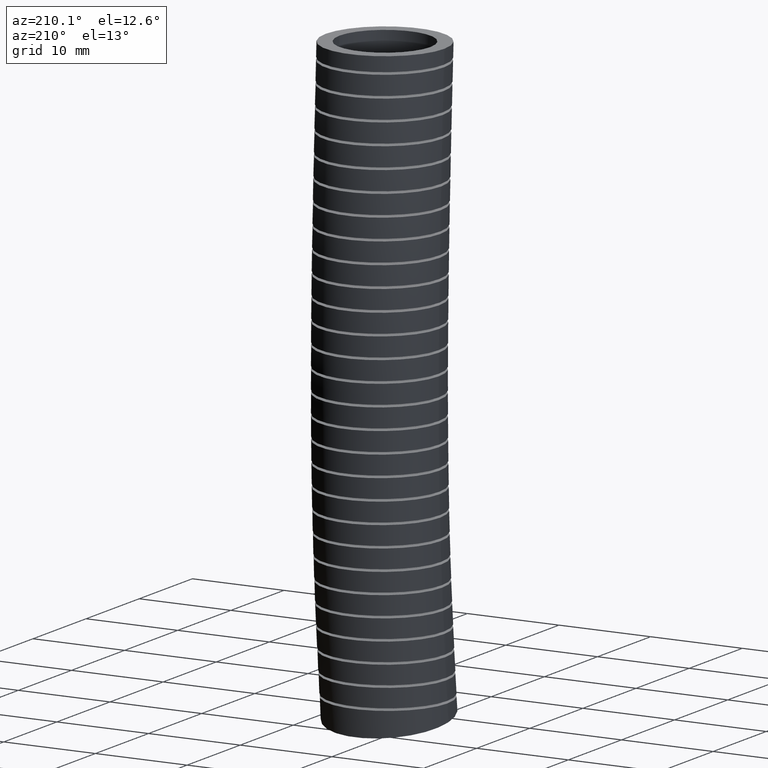
[diagram: clean part render]
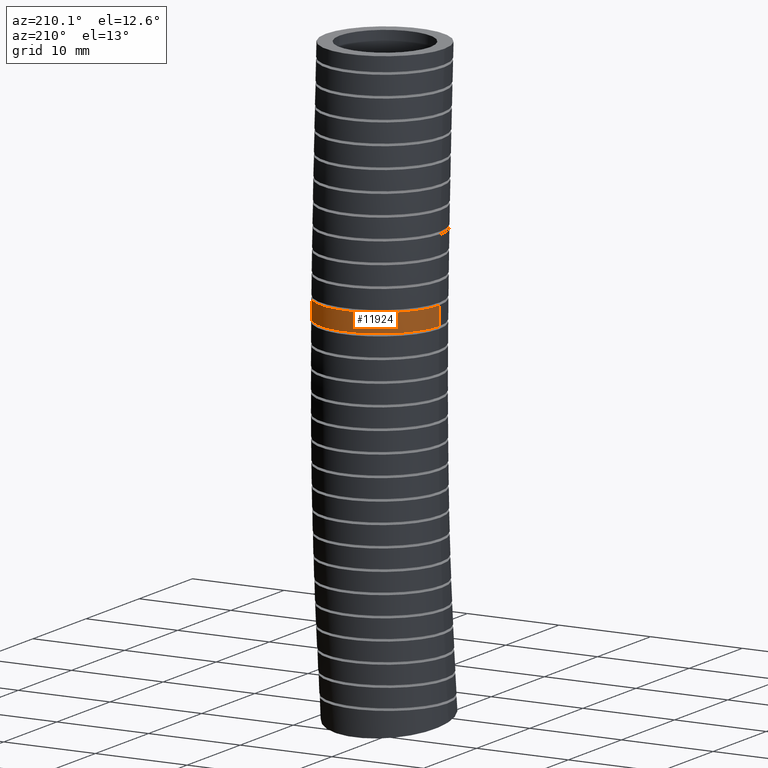
[diagram: same view with one face highlighted and labeled with its STEP entity id]
A machine part, auxiliary view. The second image highlights one B-rep face of the part: STEP entity #11924.
In plain terms, the highlighted face is a freeform B-spline surface patch.
Its self-contained STEP definition (entity closure, byte-faithful):
#581 = CARTESIAN_POINT ( 'NONE',  ( -0.2550000000000000600, 0.03926762583941977000, -1.049293649254424700 ) ) ;
#1707 = B_SPLINE_CURVE_WITH_KNOTS ( 'NONE', 3,
 ( #1717, #1716, #1715, #1714 ),
 .UNSPECIFIED., .F., .F.,
 ( 4, 4 ),
 ( 0.3764236242492631200, 0.4075087206594382700 ),
 .UNSPECIFIED. ) ;
#1714 = CARTESIAN_POINT ( 'NONE',  ( -0.2550000000000000600, 0.03926762583941977000, -1.049293649254424700 ) ) ;
#1715 = CARTESIAN_POINT ( 'NONE',  ( -0.2550000000000000600, 0.03882351107221197100, -1.022634815391523500 ) ) ;
#1716 = CARTESIAN_POINT ( 'NONE',  ( -0.2550000000000000600, 0.03831596796586075200, -0.9959735225869345000 ) ) ;
#1717 = CARTESIAN_POINT ( 'NONE',  ( -0.2550000000000000600, 0.03774983488562666500, -0.9693099584107282000 ) ) ;
#2138 = CARTESIAN_POINT ( 'NONE',  ( 0.2550000000000000600, 0.03926762583302620400, -1.049293649062532900 ) ) ;
#2139 = CARTESIAN_POINT ( 'NONE',  ( 0.2550000000000000600, 0.03882351106871016100, -1.022634815199586500 ) ) ;
#2140 = CARTESIAN_POINT ( 'NONE',  ( 0.2550000000000000600, 0.03831596796206653000, -0.9959735223950068100 ) ) ;
#2141 = CARTESIAN_POINT ( 'NONE',  ( 0.2550000000000000600, 0.03774983487748052200, -0.9693099582188967600 ) ) ;
#2197 = B_SPLINE_CURVE_WITH_KNOTS ( 'NONE', 3,
 ( #2141, #2140, #2139, #2138 ),
 .UNSPECIFIED., .F., .F.,
 ( 4, 4 ),
 ( 0.3764236241746821100, 0.4075087205848334500 ),
 .UNSPECIFIED. ) ;
#2201 = CARTESIAN_POINT ( 'NONE',  ( -0.2550000000000000600, 0.03774983488562666500, -0.9693099584107282000 ) ) ;
#2606 = CARTESIAN_POINT ( 'NONE',  ( 0.2550000000000000600, 0.03926762583302620400, -1.049293649062532900 ) ) ;
#2625 = CARTESIAN_POINT ( 'NONE',  ( 0.2550000000000000600, 0.03774983487748052200, -0.9693099582188967600 ) ) ;
#5761 = FACE_OUTER_BOUND ( 'NONE', #11925, .T. ) ;
#5813 = CARTESIAN_POINT ( 'NONE',  ( -0.2550000000000001200, -0.4555031947619411200, -1.130488866548372800 ) ) ;
#5814 = CARTESIAN_POINT ( 'NONE',  ( -0.2550000000000000600, -0.4871836107831824000, -0.4733061666967772200 ) ) ;
#5815 = CARTESIAN_POINT ( 'NONE',  ( -0.2550000000000000600, -0.5100000000000000100, 0.0000000000000000000 ) ) ;
#5816 = CARTESIAN_POINT ( 'NONE',  ( 0.2549999999999999500, -0.5345687628602172600, -2.495768177001302000 ) ) ;
#5817 = CARTESIAN_POINT ( 'NONE',  ( 0.2549999999999998900, -0.5167458791807605400, -2.314072652159792300 ) ) ;
#5818 = CARTESIAN_POINT ( 'NONE',  ( 0.2550000000000000000, -0.4814916653277938100, -1.954673297706683400 ) ) ;
#5819 = CARTESIAN_POINT ( 'NONE',  ( 0.2550000000000000000, -0.4555031947619411200, -1.130488866548372800 ) ) ;
#5820 = CARTESIAN_POINT ( 'NONE',  ( 0.2550000000000000000, -0.4871836107831824000, -0.4733061666967772200 ) ) ;
#5821 = CARTESIAN_POINT ( 'NONE',  ( 0.2550000000000000000, -0.5100000000000000100, 0.0000000000000000000 ) ) ;
#5822 = CARTESIAN_POINT ( 'NONE',  ( 0.2550000000000000000, -0.03000000000000002700, -2.569999999999999800 ) ) ;
#5823 = CARTESIAN_POINT ( 'NONE',  ( 0.2550000000000000000, -0.01126751581493338000, -2.380080086044865000 ) ) ;
#5824 = CARTESIAN_POINT ( 'NONE',  ( 0.2550000000000000000, 0.02578591590436005500, -2.004412636156899000 ) ) ;
#5825 = CARTESIAN_POINT ( 'NONE',  ( 0.2550000000000001700, 0.05488873695197821200, -1.148486533150796300 ) ) ;
#5826 = CARTESIAN_POINT ( 'NONE',  ( 0.2550000000000000000, 0.02298048079048191000, -0.4808413197099051800 ) ) ;
#5827 = CARTESIAN_POINT ( 'NONE',  ( 0.2550000000000000000, 0.0000000000000000000, 0.0000000000000000000 ) ) ;
#5835 =( BOUNDED_SURFACE ( )  B_SPLINE_SURFACE ( 3, 3, ( 
 ( #5827, #5826, #5825, #5824, #5823, #5822 ),
 ( #5821, #5820, #5819, #5818, #5817, #5816 ),
 ( #5815, #5814, #5813, #5875, #5874, #5873 ),
 ( #5872, #5871, #5870, #5869, #5868, #5867 ),
 ( #5866, #5865, #5864, #5863, #5862, #5861 ),
 ( #5860, #5859, #5858, #5857, #5856, #5855 ),
 ( #5854, #5853, #5852, #5851, #5850, #5849 ) ),
 .UNSPECIFIED., .F., .F., .T. ) 
 B_SPLINE_SURFACE_WITH_KNOTS ( ( 4, 3, 4 ),
 ( 4, 1, 1, 4 ),
 ( 0.0000000000000000000, 0.5000000000000000000, 1.000000000000000000 ),
 ( 0.0000000000000000000, 0.5599999999999998300, 0.7775565539011162200, 1.000000000000000000 ),
 .UNSPECIFIED. ) 
 GEOMETRIC_REPRESENTATION_ITEM ( )  RATIONAL_B_SPLINE_SURFACE ( (
 ( 1.000000000000000000, 1.000000000000000000, 0.9999999999999998900, 1.000000000000000000, 1.000000000000000000, 1.000000000000000000),
 ( 0.3333333333333333100, 0.3333333333333333100, 0.3333333333333332600, 0.3333333333333332600, 0.3333333333333333700, 0.3333333333333333100),
 ( 0.3333333333333333100, 0.3333333333333333100, 0.3333333333333332600, 0.3333333333333332600, 0.3333333333333333700, 0.3333333333333333100),
 ( 1.000000000000000000, 1.000000000000000000, 0.9999999999999998900, 1.000000000000000000, 1.000000000000000000, 1.000000000000000000),
 ( 0.3333333333333333100, 0.3333333333333333100, 0.3333333333333332600, 0.3333333333333332600, 0.3333333333333333700, 0.3333333333333333100),
 ( 0.3333333333333333100, 0.3333333333333333100, 0.3333333333333332600, 0.3333333333333332600, 0.3333333333333333700, 0.3333333333333333100),
 ( 1.000000000000000000, 1.000000000000000000, 0.9999999999999998900, 1.000000000000000000, 1.000000000000000000, 1.000000000000000000) ) ) 
 REPRESENTATION_ITEM ( '' )  SURFACE ( )  );
#5849 = CARTESIAN_POINT ( 'NONE',  ( 0.2550000000000000000, -0.03000000000000002700, -2.569999999999999800 ) ) ;
#5850 = CARTESIAN_POINT ( 'NONE',  ( 0.2550000000000000000, -0.01126751581493338000, -2.380080086044865000 ) ) ;
#5851 = CARTESIAN_POINT ( 'NONE',  ( 0.2550000000000000000, 0.02578591590436005500, -2.004412636156899000 ) ) ;
#5852 = CARTESIAN_POINT ( 'NONE',  ( 0.2550000000000001700, 0.05488873695197821200, -1.148486533150796300 ) ) ;
#5853 = CARTESIAN_POINT ( 'NONE',  ( 0.2550000000000000000, 0.02298048079048191000, -0.4808413197099051800 ) ) ;
#5854 = CARTESIAN_POINT ( 'NONE',  ( 0.2550000000000000000, 0.0000000000000000000, 0.0000000000000000000 ) ) ;
#5855 = CARTESIAN_POINT ( 'NONE',  ( 0.2549999999999999500, 0.4745687628602173200, -2.644231822998695900 ) ) ;
#5856 = CARTESIAN_POINT ( 'NONE',  ( 0.2549999999999998900, 0.4942108475508936700, -2.446087519929936800 ) ) ;
#5857 = CARTESIAN_POINT ( 'NONE',  ( 0.2550000000000000000, 0.5330634971365140200, -2.054151974607116000 ) ) ;
#5858 = CARTESIAN_POINT ( 'NONE',  ( 0.2550000000000000000, 0.5652806686658972100, -1.166484199753219600 ) ) ;
#5859 = CARTESIAN_POINT ( 'NONE',  ( 0.2550000000000000000, 0.5331445723641462500, -0.4883764727230331400 ) ) ;
#5860 = CARTESIAN_POINT ( 'NONE',  ( 0.2550000000000000000, 0.5100000000000000100, 0.0000000000000000000 ) ) ;
#5861 = CARTESIAN_POINT ( 'NONE',  ( -0.2549999999999998900, 0.4745687628602173200, -2.644231822998695900 ) ) ;
#5862 = CARTESIAN_POINT ( 'NONE',  ( -0.2549999999999998400, 0.4942108475508936700, -2.446087519929936800 ) ) ;
#5863 = CARTESIAN_POINT ( 'NONE',  ( -0.2550000000000000000, 0.5330634971365140200, -2.054151974607116000 ) ) ;
#5864 = CARTESIAN_POINT ( 'NONE',  ( -0.2550000000000000000, 0.5652806686658972100, -1.166484199753219600 ) ) ;
#5865 = CARTESIAN_POINT ( 'NONE',  ( -0.2549999999999999500, 0.5331445723641462500, -0.4883764727230331400 ) ) ;
#5866 = CARTESIAN_POINT ( 'NONE',  ( -0.2549999999999999500, 0.5100000000000000100, 0.0000000000000000000 ) ) ;
#5867 = CARTESIAN_POINT ( 'NONE',  ( -0.2550000000000000000, -0.02999999999999999500, -2.569999999999999800 ) ) ;
#5868 = CARTESIAN_POINT ( 'NONE',  ( -0.2550000000000000000, -0.01126751581493335000, -2.380080086044865000 ) ) ;
#5869 = CARTESIAN_POINT ( 'NONE',  ( -0.2550000000000000000, 0.02578591590436009000, -2.004412636156899000 ) ) ;
#5870 = CARTESIAN_POINT ( 'NONE',  ( -0.2550000000000001700, 0.05488873695197826100, -1.148486533150796300 ) ) ;
#5871 = CARTESIAN_POINT ( 'NONE',  ( -0.2550000000000000000, 0.02298048079048194500, -0.4808413197099051800 ) ) ;
#5872 = CARTESIAN_POINT ( 'NONE',  ( -0.2550000000000000000, 3.122849337825751200E-017, 0.0000000000000000000 ) ) ;
#5873 = CARTESIAN_POINT ( 'NONE',  ( -0.2550000000000000000, -0.5345687628602172600, -2.495768177001302000 ) ) ;
#5874 = CARTESIAN_POINT ( 'NONE',  ( -0.2549999999999999500, -0.5167458791807605400, -2.314072652159792300 ) ) ;
#5875 = CARTESIAN_POINT ( 'NONE',  ( -0.2550000000000001200, -0.4814916653277938100, -1.954673297706683400 ) ) ;
#6311 = CARTESIAN_POINT ( 'NONE',  ( 0.06620776055007979200, 0.2843590518157090300, -0.9693099584107279800 ) ) ;
#6313 = CARTESIAN_POINT ( 'NONE',  ( 0.03328236818505082200, 0.2909022532945075300, -0.9693099584107277600 ) ) ;
#6314 = CARTESIAN_POINT ( 'NONE',  ( 0.01659924059801073600, 0.2925256306142783900, -0.9693099584107282000 ) ) ;
#6474 = CARTESIAN_POINT ( 'NONE',  ( -0.008300720400596354000, 0.2925255590617870700, -0.9693099584107283100 ) ) ;
#6475 = CARTESIAN_POINT ( 'NONE',  ( -0.01660376403412220900, 0.2921216348556079400, -0.9693099584107282000 ) ) ;
#6476 = CARTESIAN_POINT ( 'NONE',  ( -0.03321606695690942900, 0.2904924563240123300, -0.9693099584107279800 ) ) ;
#6477 = CARTESIAN_POINT ( 'NONE',  ( -0.04157124660922612700, 0.2892563628148605600, -0.9693099584107274200 ) ) ;
#6478 = CARTESIAN_POINT ( 'NONE',  ( -0.06621107937086796700, 0.2843556970021723900, -0.9693099584107274200 ) ) ;
#6479 = CARTESIAN_POINT ( 'NONE',  ( -0.08210435783835320900, 0.2795297361192583500, -0.9693099584107275300 ) ) ;
#6480 = CARTESIAN_POINT ( 'NONE',  ( -0.1128461321974232600, 0.2668237531997344500, -0.9693099584107276500 ) ) ;
#6481 = CARTESIAN_POINT ( 'NONE',  ( -0.1278205628397526300, 0.2588335469741477300, -0.9693099584107283100 ) ) ;
#6482 = CARTESIAN_POINT ( 'NONE',  ( -0.1555171364381456900, 0.2403436631721438700, -0.9693099584107283100 ) ) ;
#6483 = CARTESIAN_POINT ( 'NONE',  ( -0.1683635781719956000, 0.2298255718887070600, -0.9693099584107283100 ) ) ;
#6484 = CARTESIAN_POINT ( 'NONE',  ( -0.1861121136132605500, 0.2121153794735100300, -0.9693099584107285300 ) ) ;
#6485 = CARTESIAN_POINT ( 'NONE',  ( -0.1917946010244301100, 0.2058561483603526000, -0.9693099584107275300 ) ) ;
#6486 = CARTESIAN_POINT ( 'NONE',  ( -0.2024095622808599300, 0.1929356376844771300, -0.9693099584107276500 ) ) ;
#6487 = CARTESIAN_POINT ( 'NONE',  ( -0.2073682608193868900, 0.1862533060295559200, -0.9693099584107275300 ) ) ;
#6488 = CARTESIAN_POINT ( 'NONE',  ( -0.2212196581418298900, 0.1655538657997183400, -0.9693099584107276500 ) ) ;
#6489 = CARTESIAN_POINT ( 'NONE',  ( -0.2291084258354364200, 0.1508650650741551200, -0.9693099584107280900 ) ) ;
#6490 = CARTESIAN_POINT ( 'NONE',  ( -0.2420053572328226500, 0.1197857827972058600, -0.9693099584107283100 ) ) ;
#6491 = CARTESIAN_POINT ( 'NONE',  ( -0.2468244147006667900, 0.1038650790391003300, -0.9693099584107282000 ) ) ;
#6538 = CARTESIAN_POINT ( 'NONE',  ( -0.2517010242935250300, 0.07943397685686387500, -0.9693099584107280900 ) ) ;
#6539 = CARTESIAN_POINT ( 'NONE',  ( -0.2529316705684688200, 0.07119792486193515800, -0.9693099584107282000 ) ) ;
#6540 = CARTESIAN_POINT ( 'NONE',  ( -0.2545837910421524500, 0.05453658331622540700, -0.9693099584107283100 ) ) ;
#6541 = CARTESIAN_POINT ( 'NONE',  ( -0.2550000000000000000, 0.04609798031246024200, -0.9693099584107277600 ) ) ;
#6542 = CARTESIAN_POINT ( 'NONE',  ( -0.2550000000000000600, 0.03774983488562666500, -0.9693099584107282000 ) ) ;
#6544 = B_SPLINE_CURVE_WITH_KNOTS ( 'NONE', 3,
 ( #6542, #6541, #6540, #6539, #6538, #6491, #6490, #6489, #6488, #6487, #6486, #6485, #6484, #6483, #6482, #6481, #6480, #6479, #6478, #6477, #6476, #6475, #6474, #6314, #6313, #6311, #6788, #6922, #6766, #6845, #6844, #6917, #6916, #6915, #6914, #6851, #6850, #6849, #6848, #6847, #6846, #6921 ),
 .UNSPECIFIED., .F., .F.,
 ( 4, 2, 2, 2, 2, 2, 2, 2, 2, 2, 2, 2, 2, 2, 2, 2, 2, 2, 2, 2, 4 ),
 ( 0.02045745970742342300, 0.02109680042817136200, 0.02173614114891930100, 0.02301482259041518300, 0.02429350403191106500, 0.02493284475265900400, 0.02557218547340694300, 0.02685086691490282100, 0.02812954835639870600, 0.02940822979789458500, 0.03004757051864252700, 0.03068691123939046700, 0.03196559268088634800, 0.03324427412238222700, 0.03452295556387810500, 0.03580163700537399000, 0.03644097772612192600, 0.03708031844686986200, 0.03835899988836574700, 0.03963768132986161800, 0.04091636277135749600 ),
 .UNSPECIFIED. ) ;
#6629 = CARTESIAN_POINT ( 'NONE',  ( -0.2550000000000000600, 0.03926762583941977000, -1.049293649254424700 ) ) ;
#6630 = CARTESIAN_POINT ( 'NONE',  ( -0.2550000000000000600, 0.05590268610524749800, -1.049293649254424500 ) ) ;
#6631 = CARTESIAN_POINT ( 'NONE',  ( -0.2533305818925861200, 0.07279662947522926000, -1.049293649254424500 ) ) ;
#6632 = CARTESIAN_POINT ( 'NONE',  ( -0.2468074060118517200, 0.1054523467350084600, -1.049293649254424500 ) ) ;
#6633 = CARTESIAN_POINT ( 'NONE',  ( -0.2419834879461217900, 0.1213409978962765900, -1.049293649254424300 ) ) ;
#6634 = CARTESIAN_POINT ( 'NONE',  ( -0.2323755315611277200, 0.1445071277779437800, -1.049293649254424500 ) ) ;
#6635 = CARTESIAN_POINT ( 'NONE',  ( -0.2287545755244528300, 0.1521476443462162800, -1.049293649254425100 ) ) ;
#6636 = CARTESIAN_POINT ( 'NONE',  ( -0.2208562754379750900, 0.1668853963471777800, -1.049293649254425400 ) ) ;
#6637 = CARTESIAN_POINT ( 'NONE',  ( -0.2165685133667149300, 0.1740167418313588200, -1.049293649254424700 ) ) ;
#6638 = CARTESIAN_POINT ( 'NONE',  ( -0.2027106060367075100, 0.1947130686702217000, -1.049293649254424500 ) ) ;
#6639 = CARTESIAN_POINT ( 'NONE',  ( -0.1921330565539106600, 0.2076097284706801800, -1.049293649254425100 ) ) ;
#6640 = CARTESIAN_POINT ( 'NONE',  ( -0.1683175881051088600, 0.2313798926952560500, -1.049293649254425100 ) ) ;
#6641 = CARTESIAN_POINT ( 'NONE',  ( -0.1554366559752291800, 0.2419058706340249400, -1.049293649254424300 ) ) ;
#6642 = CARTESIAN_POINT ( 'NONE',  ( -0.1347112186397971500, 0.2557340488423176000, -1.049293649254424300 ) ) ;
#6643 = CARTESIAN_POINT ( 'NONE',  ( -0.1275670046953032400, 0.2600142298187718700, -1.049293649254425100 ) ) ;
#6644 = CARTESIAN_POINT ( 'NONE',  ( -0.1127956755698268200, 0.2679002036721847600, -1.049293649254425100 ) ) ;
#6645 = CARTESIAN_POINT ( 'NONE',  ( -0.1051541897952459300, 0.2715062658041509900, -1.049293649254424300 ) ) ;
#6646 = CARTESIAN_POINT ( 'NONE',  ( -0.08200446540089723100, 0.2810693958346200900, -1.049293649254424000 ) ) ;
#6647 = CARTESIAN_POINT ( 'NONE',  ( -0.06611386289131339400, 0.2858770525940270100, -1.049293649254425100 ) ) ;
#6648 = CARTESIAN_POINT ( 'NONE',  ( -0.03342344002403330900, 0.2923763331904981100, -1.049293649254425100 ) ) ;
#6649 = CARTESIAN_POINT ( 'NONE',  ( -0.01653789287827579400, 0.2940316357431699800, -1.049293649254424700 ) ) ;
#6650 = CARTESIAN_POINT ( 'NONE',  ( 0.01671172488210832100, 0.2940203132409898200, -1.049293649254424300 ) ) ;
#6656 = CARTESIAN_POINT ( 'NONE',  ( 0.03325053022983348600, 0.2924060806970355000, -1.049293649254424300 ) ) ;
#6657 = CARTESIAN_POINT ( 'NONE',  ( 0.05792627250295651800, 0.2875071522496879800, -1.049293649254424500 ) ) ;
#6658 = CARTESIAN_POINT ( 'NONE',  ( 0.06610696328137465000, 0.2854572263397066600, -1.049293649254424900 ) ) ;
#6659 = CARTESIAN_POINT ( 'NONE',  ( 0.08206727679138868500, 0.2806156203326720100, -1.049293649254424700 ) ) ;
#6660 = CARTESIAN_POINT ( 'NONE',  ( 0.09771564620385600500, 0.2750163303865420500, -1.049293649254424500 ) ) ;
#6661 = CARTESIAN_POINT ( 'NONE',  ( 0.1127486085298745700, 0.2679222724064275800, -1.049293649254424700 ) ) ;
#6662 = CARTESIAN_POINT ( 'NONE',  ( 0.1274691932191139300, 0.2600694774597142600, -1.049293649254424500 ) ) ;
#6663 = CARTESIAN_POINT ( 'NONE',  ( 0.1347116423953148600, 0.2557367366769393000, -1.049293649254425100 ) ) ;
#6664 = CARTESIAN_POINT ( 'NONE',  ( 0.1556242617016623000, 0.2417747171200676800, -1.049293649254424900 ) ) ;
#6665 = CARTESIAN_POINT ( 'NONE',  ( 0.1684666904663934300, 0.2312324000676724800, -1.049293649254424500 ) ) ;
#6666 = CARTESIAN_POINT ( 'NONE',  ( 0.1920043274268148100, 0.2077368854718485700, -1.049293649254424300 ) ) ;
#6667 = CARTESIAN_POINT ( 'NONE',  ( 0.2027813906284338400, 0.1946267371974568000, -1.049293649254424900 ) ) ;
#6668 = CARTESIAN_POINT ( 'NONE',  ( 0.2213013564848244400, 0.1669288202096682000, -1.049293649254425400 ) ) ;
#6669 = CARTESIAN_POINT ( 'NONE',  ( 0.2291406739907628200, 0.1522925603336266500, -1.049293649254424300 ) ) ;
#6670 = CARTESIAN_POINT ( 'NONE',  ( 0.2387491862764885800, 0.1291464309080980800, -1.049293649254424500 ) ) ;
#6671 = CARTESIAN_POINT ( 'NONE',  ( 0.2416012404839508200, 0.1211887138842274400, -1.049293649254425400 ) ) ;
#6672 = CARTESIAN_POINT ( 'NONE',  ( 0.2464607075246877900, 0.1051757858794673000, -1.049293649254425400 ) ) ;
#6673 = CARTESIAN_POINT ( 'NONE',  ( 0.2484815760628743800, 0.09709967639208078000, -1.049293649254424900 ) ) ;
#6674 = CARTESIAN_POINT ( 'NONE',  ( 0.2533449358219062600, 0.07266707008053326100, -1.049293649254424900 ) ) ;
#6675 = CARTESIAN_POINT ( 'NONE',  ( 0.2550000000000000000, 0.05610830860690069900, -1.049293649062532600 ) ) ;
#6676 = CARTESIAN_POINT ( 'NONE',  ( 0.2550000000000000600, 0.03926762583302620400, -1.049293649062532900 ) ) ;
#6679 = B_SPLINE_CURVE_WITH_KNOTS ( 'NONE', 3,
 ( #6676, #6675, #6674, #6673, #6672, #6671, #6670, #6669, #6668, #6667, #6666, #6665, #6664, #6663, #6662, #6661, #6660, #6659, #6658, #6657, #6656, #6650, #6649, #6648, #6647, #6646, #6645, #6644, #6643, #6642, #6641, #6640, #6639, #6638, #6637, #6636, #6635, #6634, #6633, #6632, #6631, #6630, #6629 ),
 .UNSPECIFIED., .F., .F.,
 ( 4, 2, 2, 2, 2, 2, 2, 2, 1, 2, 2, 2, 2, 2, 2, 2, 2, 2, 2, 2, 2, 4 ),
 ( 0.0000000000000000000, 0.001265038561334687100, 0.001897557842002030800, 0.002530077122669374600, 0.003795115684004059900, 0.005060154245338744800, 0.006325192806673429800, 0.006957712087340773100, 0.007590231368008115500, 0.008222750648675458000, 0.008855269929342801300, 0.01012030849067748800, 0.01138534705201217500, 0.01265038561334686000, 0.01328290489401420500, 0.01391542417468154800, 0.01518046273601623300, 0.01644550129735091900, 0.01707802057801825800, 0.01771053985868559900, 0.01897557842002028200, 0.02024061698135496600 ),
 .UNSPECIFIED. ) ;
#6766 = CARTESIAN_POINT ( 'NONE',  ( 0.1277869922666710900, 0.2588545709996752400, -0.9693099584107279800 ) ) ;
#6788 = CARTESIAN_POINT ( 'NONE',  ( 0.08210977284944069600, 0.2795269091108828500, -0.9693099584107283100 ) ) ;
#6844 = CARTESIAN_POINT ( 'NONE',  ( 0.1683626530077722000, 0.2298237781845475200, -0.9693099584107276500 ) ) ;
#6845 = CARTESIAN_POINT ( 'NONE',  ( 0.1555213664331317700, 0.2403422250802543000, -0.9693099584107280900 ) ) ;
#6846 = CARTESIAN_POINT ( 'NONE',  ( 0.2549999999999999500, 0.05458860915681625100, -0.9693099582188963200 ) ) ;
#6847 = CARTESIAN_POINT ( 'NONE',  ( 0.2533240394220959100, 0.07130575131823319000, -0.9693099584107282000 ) ) ;
#6848 = CARTESIAN_POINT ( 'NONE',  ( 0.2468235937430631700, 0.1038663471234682300, -0.9693099584107283100 ) ) ;
#6849 = CARTESIAN_POINT ( 'NONE',  ( 0.2419777288295227900, 0.1198633507485288400, -0.9693099584107283100 ) ) ;
#6850 = CARTESIAN_POINT ( 'NONE',  ( 0.2290870275701367400, 0.1509056006814484500, -0.9693099584107282000 ) ) ;
#6851 = CARTESIAN_POINT ( 'NONE',  ( 0.2212202266971082000, 0.1655538773101897500, -0.9693099584107285300 ) ) ;
#6914 = CARTESIAN_POINT ( 'NONE',  ( 0.2073618479444733200, 0.1862624585254912500, -0.9693099584107285300 ) ) ;
#6915 = CARTESIAN_POINT ( 'NONE',  ( 0.2023968451043085800, 0.1929531364374086100, -0.9693099584107283100 ) ) ;
#6916 = CARTESIAN_POINT ( 'NONE',  ( 0.1917576964767752600, 0.2058990396341978900, -0.9693099584107282000 ) ) ;
#6917 = CARTESIAN_POINT ( 'NONE',  ( 0.1860814066870413700, 0.2121473749153713100, -0.9693099584107276500 ) ) ;
#6921 = CARTESIAN_POINT ( 'NONE',  ( 0.2550000000000000600, 0.03774983487748052200, -0.9693099582188967600 ) ) ;
#6922 = CARTESIAN_POINT ( 'NONE',  ( 0.1128252764965437900, 0.2668329617539408900, -0.9693099584107280900 ) ) ;
#11497 = VERTEX_POINT ( 'NONE', #581 ) ;
#11611 = EDGE_CURVE ( 'NONE', #11626, #11497, #1707, .T. ) ;
#11618 = EDGE_CURVE ( 'NONE', #11663, #11666, #2197, .T. ) ;
#11626 = VERTEX_POINT ( 'NONE', #2201 ) ;
#11663 = VERTEX_POINT ( 'NONE', #2625 ) ;
#11666 = VERTEX_POINT ( 'NONE', #2606 ) ;
#11924 = ADVANCED_FACE ( 'NONE', ( #5761 ), #5835, .T. ) ;
#11925 = EDGE_LOOP ( 'NONE', ( #11973, #11974, #11976, #11959 ) ) ;
#11959 = ORIENTED_EDGE ( 'NONE', *, *, #11960, .T. ) ;
#11960 = EDGE_CURVE ( 'NONE', #11666, #11497, #6679, .T. ) ;
#11973 = ORIENTED_EDGE ( 'NONE', *, *, #11611, .F. ) ;
#11974 = ORIENTED_EDGE ( 'NONE', *, *, #11975, .T. ) ;
#11975 = EDGE_CURVE ( 'NONE', #11626, #11663, #6544, .T. ) ;
#11976 = ORIENTED_EDGE ( 'NONE', *, *, #11618, .T. ) ;